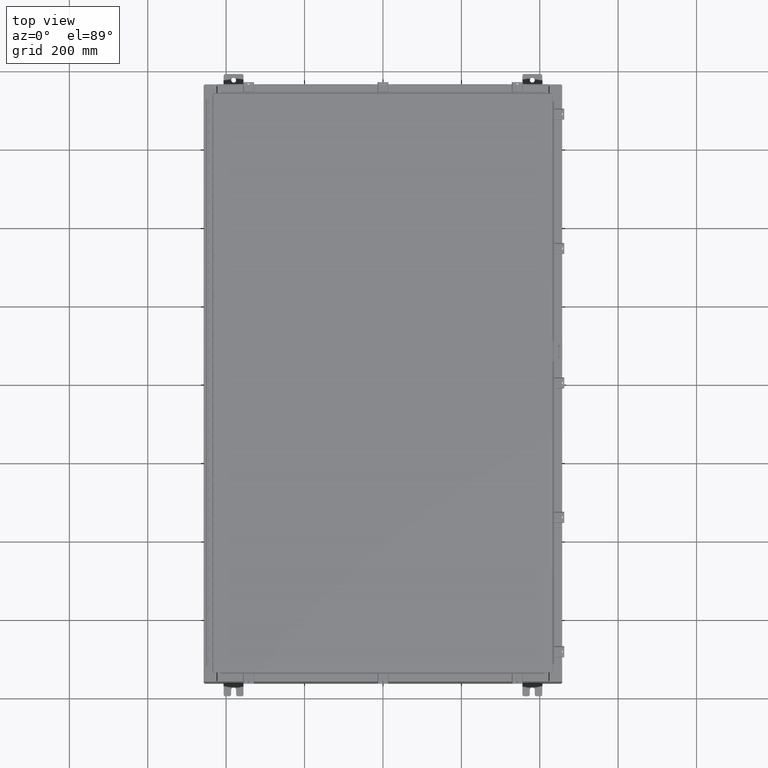
[diagram: clean part render]
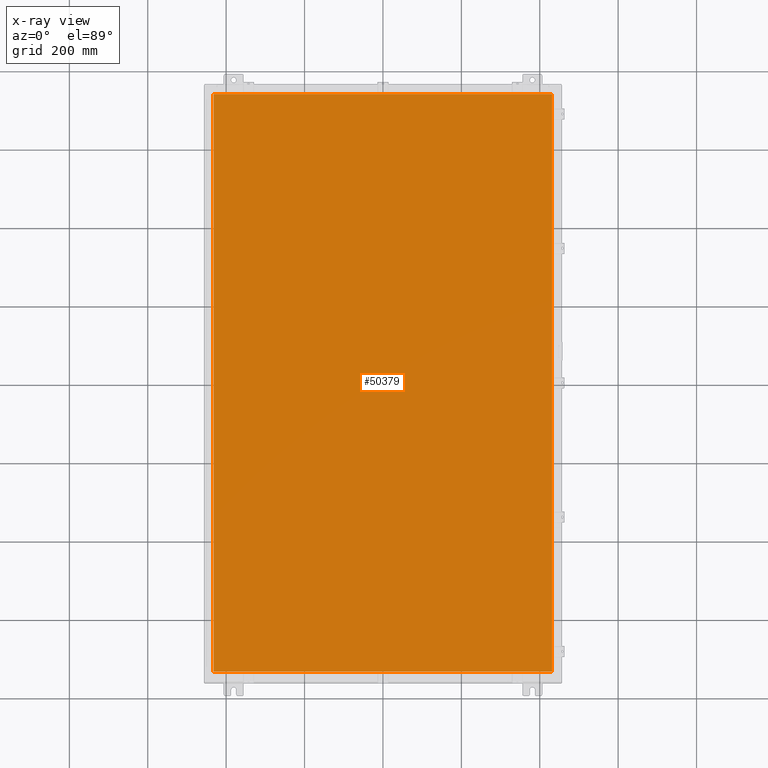
[diagram: x-ray — body ghosted, one internal face saturated and labeled with its STEP entity id]
A machine part, top view, then the same camera in x-ray: the body is ghosted and one INTERNAL B-rep face — a face not visible from any outside direction — is saturated and labeled: STEP entity #50379.
In plain terms, the highlighted planar face has unit normal (0, 0, -1).
Its self-contained STEP definition (entity closure, byte-faithful):
#1934 = DIRECTION ( 'NONE',  ( 0.0000000000000000000, 1.000000000000000000, 0.0000000000000000000 ) ) ;
#2959 = VERTEX_POINT ( 'NONE', #5001 ) ;
#5001 = CARTESIAN_POINT ( 'NONE',  ( 16.99030000000000500, 29.00630000000000000, -0.07470000000000000300 ) ) ;
#6896 = CARTESIAN_POINT ( 'NONE',  ( 16.99030000000000500, -29.00630000000000000, -0.07470000000000019700 ) ) ;
#7009 = ORIENTED_EDGE ( 'NONE', *, *, #10530, .F. ) ;
#10530 = EDGE_CURVE ( 'NONE', #58866, #2959, #46109, .T. ) ;
#12642 = VECTOR ( 'NONE', #21541, 39.37007874015748100 ) ;
#12944 = EDGE_LOOP ( 'NONE', ( #7009, #23920, #46906, #15464 ) ) ;
#13929 = CARTESIAN_POINT ( 'NONE',  ( -16.99029999999999400, 29.00630000000000000, -0.07469999999999582500 ) ) ;
#15464 = ORIENTED_EDGE ( 'NONE', *, *, #53559, .F. ) ;
#15859 = VERTEX_POINT ( 'NONE', #37476 ) ;
#16021 = EDGE_CURVE ( 'NONE', #32474, #58866, #19301, .T. ) ;
#18470 = DIRECTION ( 'NONE',  ( 0.0000000000000000000, 0.0000000000000000000, -1.000000000000000000 ) ) ;
#19301 = LINE ( 'NONE', #29778, #56575 ) ;
#21541 = DIRECTION ( 'NONE',  ( -1.000000000000000000, -0.0000000000000000000, -0.0000000000000000000 ) ) ;
#23920 = ORIENTED_EDGE ( 'NONE', *, *, #16021, .F. ) ;
#25550 = FACE_OUTER_BOUND ( 'NONE', #12944, .T. ) ;
#28527 = LINE ( 'NONE', #55558, #12642 ) ;
#29404 = CARTESIAN_POINT ( 'NONE',  ( -16.99029999999999800, -29.00630000000000000, -0.07470000000000000300 ) ) ;
#29696 = DIRECTION ( 'NONE',  ( 1.000000000000000000, -0.0000000000000000000, -0.0000000000000000000 ) ) ;
#29778 = CARTESIAN_POINT ( 'NONE',  ( -16.99029999999999800, -29.00630000000000300, -0.07469999999999804600 ) ) ;
#30000 = VECTOR ( 'NONE', #42945, 39.37007874015748100 ) ;
#32474 = VERTEX_POINT ( 'NONE', #29404 ) ;
#33765 = EDGE_CURVE ( 'NONE', #15859, #32474, #44477, .T. ) ;
#37476 = CARTESIAN_POINT ( 'NONE',  ( -16.99029999999999400, 29.00630000000000000, -0.07470000000000000300 ) ) ;
#37758 = PLANE ( 'NONE',  #43529 ) ;
#42945 = DIRECTION ( 'NONE',  ( 0.0000000000000000000, -1.000000000000000000, 0.0000000000000000000 ) ) ;
#43529 = AXIS2_PLACEMENT_3D ( 'NONE', #47554, #18470, #52455 ) ;
#44477 = LINE ( 'NONE', #13929, #30000 ) ;
#46109 = LINE ( 'NONE', #6896, #57587 ) ;
#46906 = ORIENTED_EDGE ( 'NONE', *, *, #33765, .F. ) ;
#47554 = CARTESIAN_POINT ( 'NONE',  ( 0.0000000000000000000, 0.0000000000000000000, -0.07470000000000000300 ) ) ;
#50379 = ADVANCED_FACE ( 'NONE', ( #25550 ), #37758, .T. ) ;
#52455 = DIRECTION ( 'NONE',  ( -1.000000000000000000, 0.0000000000000000000, -0.0000000000000000000 ) ) ;
#53559 = EDGE_CURVE ( 'NONE', #2959, #15859, #28527, .T. ) ;
#54785 = CARTESIAN_POINT ( 'NONE',  ( 16.99030000000000500, -29.00630000000000000, -0.07470000000000000300 ) ) ;
#55558 = CARTESIAN_POINT ( 'NONE',  ( 16.99030000000000500, 29.00630000000000300, -0.07469999999999804600 ) ) ;
#56575 = VECTOR ( 'NONE', #29696, 39.37007874015748100 ) ;
#57587 = VECTOR ( 'NONE', #1934, 39.37007874015748100 ) ;
#58866 = VERTEX_POINT ( 'NONE', #54785 ) ;